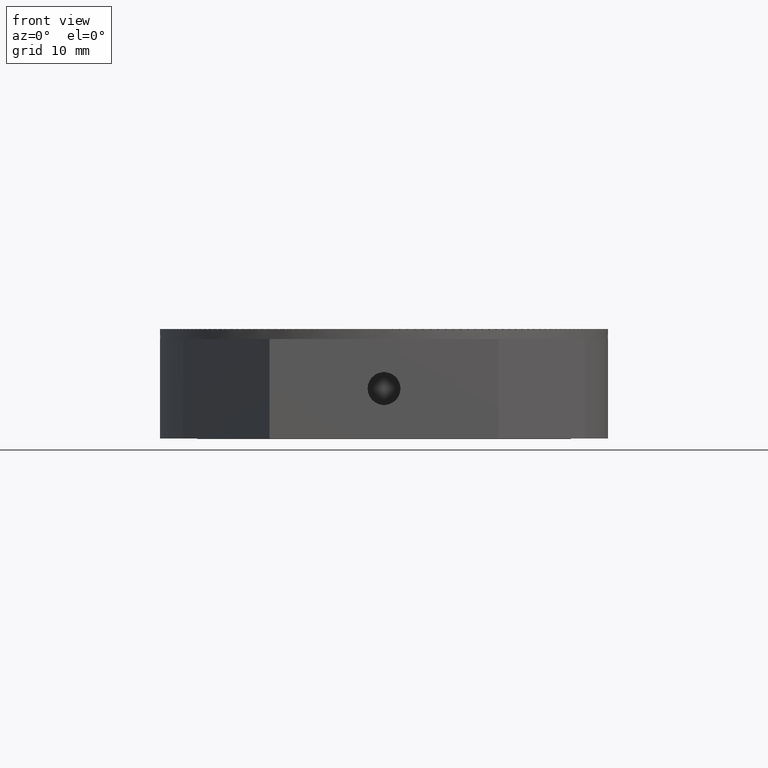
[diagram: clean part render]
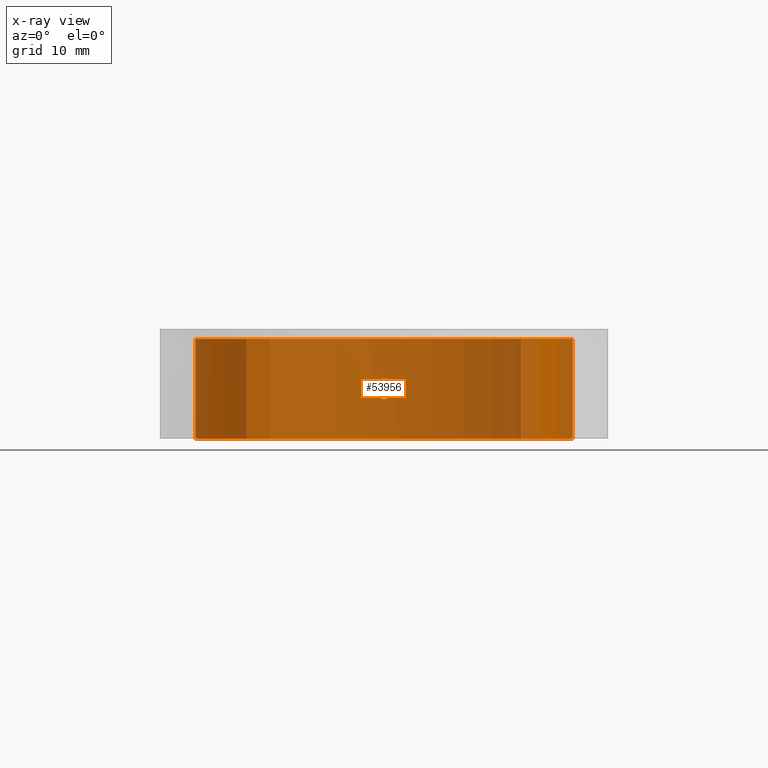
[diagram: x-ray — body ghosted, one internal face saturated and labeled with its STEP entity id]
A machine part, front view, then the same camera in x-ray: the body is ghosted and one INTERNAL B-rep face — a face not visible from any outside direction — is saturated and labeled: STEP entity #53956.
In plain terms, the highlighted cylindrical surface (partial cylindrical patch) has radius 19 mm, axis along (0, 0, 1).
Its self-contained STEP definition (entity closure, byte-faithful):
#503 = CARTESIAN_POINT ( 'NONE',  ( 0.9983299725826891846, 5.268352466344361495, -18.97382381723622302 ) ) ;
#816 = CARTESIAN_POINT ( 'NONE',  ( 1.024999999999997247, 5.000000000000000888, -18.97233182821763720 ) ) ;
#1108 = CARTESIAN_POINT ( 'NONE',  ( 13.77774977595722028, 0.000000000000000000, 13.08333333333331794 ) ) ;
#1203 = DIRECTION ( 'NONE',  ( 0.000000000000000000, 0.000000000000000000, 1.000000000000000000 ) ) ;
#3277 = DIRECTION ( 'NONE',  ( 0.000000000000000000, -1.000000000000000000, 0.000000000000000000 ) ) ;
#3369 = CYLINDRICAL_SURFACE ( 'NONE', #26852, 19.00000000000000000 ) ;
#4298 = CARTESIAN_POINT ( 'NONE',  ( -0.5155750903382225747, 5.896013419148771639, -18.99340915357209170 ) ) ;
#5229 = CARTESIAN_POINT ( 'NONE',  ( -1.024999836218958960, 4.864552550451135104, -18.97233183706607562 ) ) ;
#5837 = CARTESIAN_POINT ( 'NONE',  ( 0.8952484495173839152, 4.483061131220788198, -18.97896704905422638 ) ) ;
#6801 = CIRCLE ( 'NONE', #13898, 19.00000000000000000 ) ;
#7583 = VERTEX_POINT ( 'NONE', #22726 ) ;
#7683 = LINE ( 'NONE', #37351, #22974 ) ;
#7780 = FACE_BOUND ( 'NONE', #60877, .T. ) ;
#8771 = ORIENTED_EDGE ( 'NONE', *, *, #49150, .F. ) ;
#9652 = CARTESIAN_POINT ( 'NONE',  ( -0.8954433507634013134, 4.483418007772402625, -18.97895766880183643 ) ) ;
#11650 = ORIENTED_EDGE ( 'NONE', *, *, #17224, .F. ) ;
#11817 = CARTESIAN_POINT ( 'NONE',  ( 1.024999999999997469, 4.864553658639513500, -18.97233182821763720 ) ) ;
#12830 = DIRECTION ( 'NONE',  ( -0.000000000000000000, 1.000000000000000000, -0.000000000000000000 ) ) ;
#12915 = ORIENTED_EDGE ( 'NONE', *, *, #35049, .F. ) ;
#13898 = AXIS2_PLACEMENT_3D ( 'NONE', #36571, #56127, #46675 ) ;
#14398 = CARTESIAN_POINT ( 'NONE',  ( -0.5159171941557583185, 4.104301831882194662, -18.99339469960658633 ) ) ;
#15020 = CARTESIAN_POINT ( 'NONE',  ( 0.8954437709654579081, 5.516581294075980857, -18.97895764879401526 ) ) ;
#17224 = EDGE_CURVE ( 'NONE', #21444, #61572, #20962, .T. ) ;
#17594 = EDGE_CURVE ( 'NONE', #61572, #47676, #25172, .T. ) ;
#19134 = CARTESIAN_POINT ( 'NONE',  ( -0.8952488809785970059, 5.516938144512833375, -18.97896702849002182 ) ) ;
#19244 = CARTESIAN_POINT ( 'NONE',  ( -13.77774977595721495, 10.00000000000000000, 13.08333333333332504 ) ) ;
#20962 = LINE ( 'NONE', #60043, #30181 ) ;
#21444 = VERTEX_POINT ( 'NONE', #23004 ) ;
#22726 = CARTESIAN_POINT ( 'NONE',  ( 1.024999999999997247, 5.000000000000000000, -18.97233182821763364 ) ) ;
#22974 = VECTOR ( 'NONE', #3277, 1000.000000000000000 ) ;
#23004 = CARTESIAN_POINT ( 'NONE',  ( -13.77774977595721495, 0.000000000000000000, 13.08333333333332504 ) ) ;
#23237 = CARTESIAN_POINT ( 'NONE',  ( -0.6285303919795286465, 5.820900948828718668, -18.98984275653920761 ) ) ;
#24465 = CARTESIAN_POINT ( 'NONE',  ( -0.6302328620002791704, 4.180667564662384983, -18.98978032927446691 ) ) ;
#24724 = ORIENTED_EDGE ( 'NONE', *, *, #28773, .F. ) ;
#25172 = CIRCLE ( 'NONE', #62423, 19.00000000000000000 ) ;
#26852 = AXIS2_PLACEMENT_3D ( 'NONE', #60750, #12830, #32078 ) ;
#28294 = CARTESIAN_POINT ( 'NONE',  ( -0.9983296866782668255, 4.731646528218671044, -18.97382383246180737 ) ) ;
#28595 = CARTESIAN_POINT ( 'NONE',  ( 0.6302332756326769481, 5.819332134551865821, -18.98978031564150015 ) ) ;
#28753 = VERTEX_POINT ( 'NONE', #1108 ) ;
#28773 = EDGE_CURVE ( 'NONE', #47676, #28753, #7683, .T. ) ;
#28909 = CARTESIAN_POINT ( 'NONE',  ( -0.8199987693859075444, 5.629706947425088259, -18.98253882887986421 ) ) ;
#29221 = CARTESIAN_POINT ( 'NONE',  ( -1.025000163779530959, 5.135444970708108237, -18.97233181936928048 ) ) ;
#30181 = VECTOR ( 'NONE', #44621, 1000.000000000000000 ) ;
#32078 = DIRECTION ( 'NONE',  ( 0.000000000000000000, 0.000000000000000000, 1.000000000000000000 ) ) ;
#33329 = CARTESIAN_POINT ( 'NONE',  ( 1.024999999999997247, 5.000000000000000888, -18.97233182821763720 ) ) ;
#33624 = CARTESIAN_POINT ( 'NONE',  ( -0.1344068464416662001, 3.975091807684933531, -18.99999504721815669 ) ) ;
#35049 = EDGE_CURVE ( 'NONE', #28753, #21444, #6801, .T. ) ;
#35345 = CARTESIAN_POINT ( 'NONE',  ( 13.77774977595722028, 10.00000000000000000, 13.08333333333331794 ) ) ;
#36571 = CARTESIAN_POINT ( 'NONE',  ( 0.000000000000000000, 0.000000000000000000, 0.000000000000000000 ) ) ;
#37351 = CARTESIAN_POINT ( 'NONE',  ( 13.77774977595720252, 0.000000000000000000, 13.08333333333333748 ) ) ;
#37835 = B_SPLINE_CURVE_WITH_KNOTS ( 'NONE', 3,
 ( #33329, #43094, #503, #15020, #53185, #28595, #61692, #62335, #52565, #42467, #52255, #4298, #23237, #28909, #19134, #38379, #29221, #5229, #28294, #9652, #57591, #24465, #14398, #56966, #33624, #52867, #48150, #43699, #38979, #58207, #5837, #58798, #11817, #816 ),
 .UNSPECIFIED., .T., .F.,
 ( 4, 2, 2, 2, 2, 2, 2, 2, 2, 2, 2, 2, 2, 2, 2, 2, 4 ),
 ( 0.000000000000000000, 0.0004005659660587875155, 0.0008011319321175750310, 0.001201697898176362547, 0.001602263864235150062, 0.002002829830293937144, 0.002403395796352724226, 0.002803961762411512175, 0.003204527728470299257, 0.003605093694529086772, 0.004005659660587874288, 0.004406225626646661370, 0.004806791592705448452, 0.005207357558764237268, 0.005607923524823024350, 0.006008489490881811432, 0.006409055456940598514 ),
 .UNSPECIFIED. ) ;
#38379 = CARTESIAN_POINT ( 'NONE',  ( -0.9982716476954829332, 5.268606257472056242, -18.97382707164824112 ) ) ;
#38979 = CARTESIAN_POINT ( 'NONE',  ( 0.6285299787946285743, 4.179098754041845609, -18.98984277008910837 ) ) ;
#40014 = ORIENTED_EDGE ( 'NONE', *, *, #17594, .F. ) ;
#42467 = CARTESIAN_POINT ( 'NONE',  ( -0.1330030134558912724, 6.025091327014799880, -19.00000492685095210 ) ) ;
#42932 = DIRECTION ( 'NONE',  ( 0.000000000000000000, -1.000000000000000000, 0.000000000000000000 ) ) ;
#43075 = EDGE_LOOP ( 'NONE', ( #24724, #40014, #11650, #12915 ) ) ;
#43094 = CARTESIAN_POINT ( 'NONE',  ( 1.024999999999997247, 5.135446341360488276, -18.97233182821763720 ) ) ;
#43699 = CARTESIAN_POINT ( 'NONE',  ( 0.5155747231427917354, 4.103986385561216643, -18.99340916299493998 ) ) ;
#44621 = DIRECTION ( 'NONE',  ( -0.000000000000000000, 1.000000000000000000, -0.000000000000000000 ) ) ;
#46675 = DIRECTION ( 'NONE',  ( 0.000000000000000000, 0.000000000000000000, 1.000000000000000000 ) ) ;
#47676 = VERTEX_POINT ( 'NONE', #35345 ) ;
#48150 = CARTESIAN_POINT ( 'NONE',  ( 0.2673620170498972048, 4.001413376695627910, -18.99852432374480316 ) ) ;
#49150 = EDGE_CURVE ( 'NONE', #7583, #7583, #37835, .T. ) ;
#50990 = FACE_OUTER_BOUND ( 'NONE', #43075, .T. ) ;
#52255 = CARTESIAN_POINT ( 'NONE',  ( -0.2673622176821324747, 5.998586583941539985, -18.99852432146586878 ) ) ;
#52565 = CARTESIAN_POINT ( 'NONE',  ( 0.1344069483984162983, 6.024908192245303162, -18.99999504721439436 ) ) ;
#52867 = CARTESIAN_POINT ( 'NONE',  ( 0.1330029114982248517, 3.974908673054967867, -19.00000492684720044 ) ) ;
#53185 = CARTESIAN_POINT ( 'NONE',  ( 0.8193088609145762202, 5.630263531271539890, -18.98256261436972991 ) ) ;
#53956 = ADVANCED_FACE ( 'NONE', ( #50990, #7780 ), #3369, .F. ) ;
#56127 = DIRECTION ( 'NONE',  ( -0.000000000000000000, 1.000000000000000000, -0.000000000000000000 ) ) ;
#56966 = CARTESIAN_POINT ( 'NONE',  ( -0.2692897762295399233, 4.002037688079659539, -18.99849193443224493 ) ) ;
#57591 = CARTESIAN_POINT ( 'NONE',  ( -0.8193084094658796834, 4.369735904465582799, -18.98256263376005748 ) ) ;
#58207 = CARTESIAN_POINT ( 'NONE',  ( 0.8199983065406369898, 4.370292474930057125, -18.98253884874780439 ) ) ;
#58798 = CARTESIAN_POINT ( 'NONE',  ( 0.9982713721121985184, 4.731392762496540172, -18.97382708635952042 ) ) ;
#60043 = CARTESIAN_POINT ( 'NONE',  ( -13.77774977595719719, 0.000000000000000000, 13.08333333333334636 ) ) ;
#60750 = CARTESIAN_POINT ( 'NONE',  ( 0.000000000000000000, 0.000000000000000000, 0.000000000000000000 ) ) ;
#60877 = EDGE_LOOP ( 'NONE', ( #8771 ) ) ;
#61572 = VERTEX_POINT ( 'NONE', #19244 ) ;
#61692 = CARTESIAN_POINT ( 'NONE',  ( 0.5159175551160330997, 5.895697975388264567, -18.99339469031428607 ) ) ;
#61849 = CARTESIAN_POINT ( 'NONE',  ( 0.000000000000000000, 10.00000000000000000, 0.000000000000000000 ) ) ;
#62335 = CARTESIAN_POINT ( 'NONE',  ( 0.2692899794686202108, 5.997962270704324972, -18.99849193206380349 ) ) ;
#62423 = AXIS2_PLACEMENT_3D ( 'NONE', #61849, #42932, #1203 ) ;